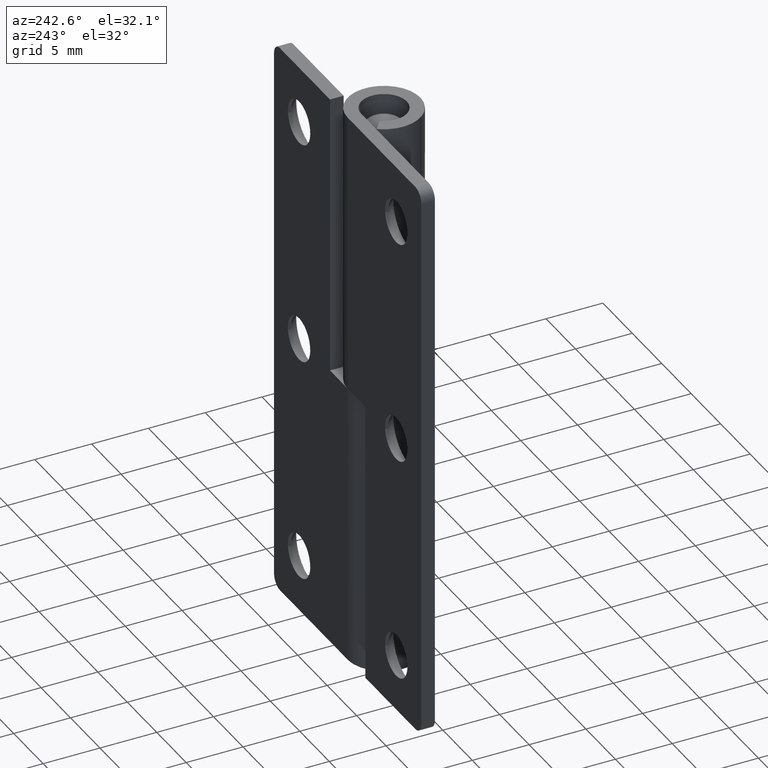
[diagram: clean part render]
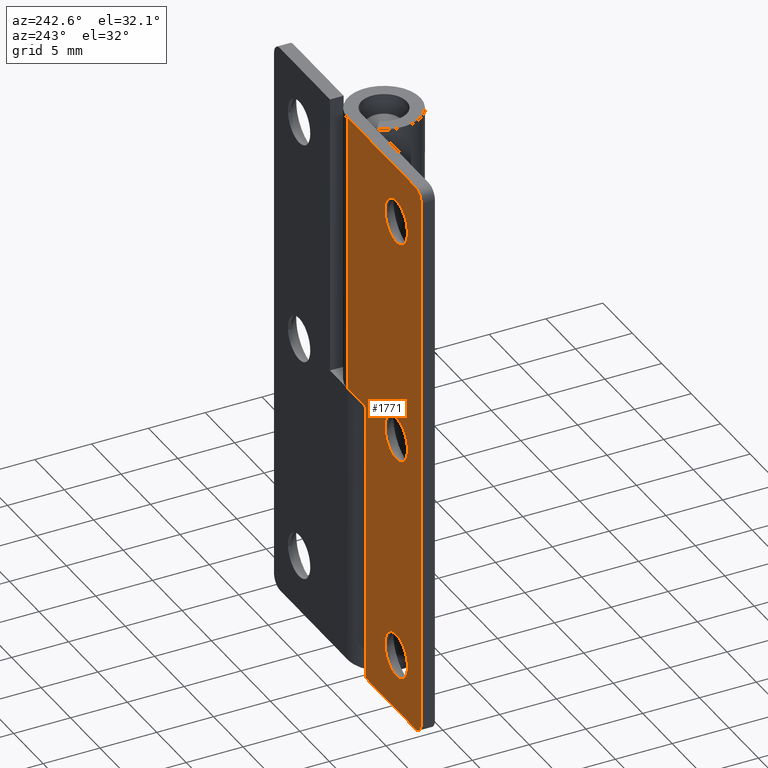
[diagram: same view with one face highlighted and labeled with its STEP entity id]
A machine part, auxiliary view. The second image highlights one B-rep face of the part: STEP entity #1771.
In plain terms, the highlighted face is a freeform B-spline surface patch.
Its self-contained STEP definition (entity closure, byte-faithful):
#368=CARTESIAN_POINT('',(-6.362408583839804,3.200001001358031,44.783208472573087));
#369=VERTEX_POINT('',#368);
#375=CARTESIAN_POINT('',(-8.250000000000000,3.200001001358030,43.100000000000001));
#376=VERTEX_POINT('',#375);
#377=CARTESIAN_POINT('',(-6.362408583839804,3.200001001358031,44.783208472573087));
#378=CARTESIAN_POINT('',(-6.555726771234848,3.200001001358031,43.100000000000001));
#379=CARTESIAN_POINT('',(-8.250000000000000,3.200001001358030,43.100000000000001));
#387=(BOUNDED_CURVE()B_SPLINE_CURVE(2,(#377,#378,#379),.UNSPECIFIED.,.F.,.U.)B_SPLINE_CURVE_WITH_KNOTS((3,3),(0.269767803717760,0.500000000000000),.UNSPECIFIED.)CURVE()GEOMETRIC_REPRESENTATION_ITEM()RATIONAL_B_SPLINE_CURVE((0.957343642089429,0.730266203825616,1.0))REPRESENTATION_ITEM(''));
#388=EDGE_CURVE('',#369,#376,#387,.T.);
#390=CARTESIAN_POINT('',(-10.146456096158129,3.200001001358031,44.884007775818901));
#391=VERTEX_POINT('',#390);
#392=CARTESIAN_POINT('',(-8.250000000000000,3.200001001358030,43.100000000000001));
#393=CARTESIAN_POINT('',(-10.037341526481669,3.200001001358030,43.100000000000001));
#394=CARTESIAN_POINT('',(-10.146456096158133,3.200001001358031,44.884007775818901));
#402=(BOUNDED_CURVE()B_SPLINE_CURVE(2,(#392,#393,#394),.UNSPECIFIED.,.F.,.U.)B_SPLINE_CURVE_WITH_KNOTS((3,3),(0.500000000000000,0.739332962180381),.UNSPECIFIED.)CURVE()GEOMETRIC_REPRESENTATION_ITEM()RATIONAL_B_SPLINE_CURVE((1.0,0.719603993355320,0.976072041541208))REPRESENTATION_ITEM(''));
#403=EDGE_CURVE('',#376,#391,#402,.T.);
#498=CARTESIAN_POINT('',(-8.250000000000000,3.200001001358030,46.899999999999999));
#499=VERTEX_POINT('',#498);
#500=CARTESIAN_POINT('',(-10.146456096158133,3.200001001358031,44.884007775818901));
#501=CARTESIAN_POINT('',(-10.150000000000000,3.200001001358030,44.941949749393274));
#502=CARTESIAN_POINT('',(-10.150000000000000,3.200001001358030,45.0));
#503=CARTESIAN_POINT('',(-10.150000000000000,3.200001001358031,46.899999999999984));
#504=CARTESIAN_POINT('',(-8.250000000000000,3.200001001358030,46.899999999999999));
#512=(BOUNDED_CURVE()B_SPLINE_CURVE(2,(#500,#501,#502,#503,#504),.UNSPECIFIED.,.F.,.U.)B_SPLINE_CURVE_WITH_KNOTS((3,2,3),(0.739332962180382,0.750000000000000,1.0),.UNSPECIFIED.)CURVE()GEOMETRIC_REPRESENTATION_ITEM()RATIONAL_B_SPLINE_CURVE((0.976072041541210,0.987502787831229,1.0,0.707106781186547,1.0))REPRESENTATION_ITEM(''));
#513=EDGE_CURVE('',#391,#499,#512,.T.);
#515=CARTESIAN_POINT('',(-8.250000000000000,3.200001001358030,46.899999999999999));
#516=CARTESIAN_POINT('',(-6.350000000000001,3.200001001358031,46.899999999999984));
#517=CARTESIAN_POINT('',(-6.350000000000001,3.200001001358030,45.0));
#518=CARTESIAN_POINT('',(-6.350000000000001,3.200001001358031,44.891248984017686));
#519=CARTESIAN_POINT('',(-6.362408583839804,3.200001001358031,44.783208472573087));
#527=(BOUNDED_CURVE()B_SPLINE_CURVE(2,(#515,#516,#517,#518,#519),.UNSPECIFIED.,.F.,.U.)B_SPLINE_CURVE_WITH_KNOTS((3,2,3),(0.0,0.250000000000000,0.269767803717760),.UNSPECIFIED.)CURVE()GEOMETRIC_REPRESENTATION_ITEM()RATIONAL_B_SPLINE_CURVE((1.0,0.707106781186547,1.0,0.976840577360931,0.957343642089429))REPRESENTATION_ITEM(''));
#528=EDGE_CURVE('',#499,#369,#527,.T.);
#696=CARTESIAN_POINT('',(-6.362408583839804,3.200001001358031,24.783208472573079));
#697=VERTEX_POINT('',#696);
#703=CARTESIAN_POINT('',(-8.250000000000000,3.200001001358030,23.100000000000001));
#704=VERTEX_POINT('',#703);
#705=CARTESIAN_POINT('',(-6.362408583839804,3.200001001358030,24.783208472573079));
#706=CARTESIAN_POINT('',(-6.555726771234851,3.200001001358030,23.099999999999994));
#707=CARTESIAN_POINT('',(-8.250000000000000,3.200001001358030,23.100000000000001));
#715=(BOUNDED_CURVE()B_SPLINE_CURVE(2,(#705,#706,#707),.UNSPECIFIED.,.F.,.U.)B_SPLINE_CURVE_WITH_KNOTS((3,3),(0.269767803717760,0.500000000000000),.UNSPECIFIED.)CURVE()GEOMETRIC_REPRESENTATION_ITEM()RATIONAL_B_SPLINE_CURVE((0.957343642089428,0.730266203825617,1.0))REPRESENTATION_ITEM(''));
#716=EDGE_CURVE('',#697,#704,#715,.T.);
#718=CARTESIAN_POINT('',(-10.146456096158129,3.200001001358030,24.884007775818890));
#719=VERTEX_POINT('',#718);
#720=CARTESIAN_POINT('',(-8.250000000000000,3.200001001358030,23.100000000000001));
#721=CARTESIAN_POINT('',(-10.037341526481669,3.200001001358030,23.100000000000001));
#722=CARTESIAN_POINT('',(-10.146456096158133,3.200001001358030,24.884007775818890));
#730=(BOUNDED_CURVE()B_SPLINE_CURVE(2,(#720,#721,#722),.UNSPECIFIED.,.F.,.U.)B_SPLINE_CURVE_WITH_KNOTS((3,3),(0.500000000000000,0.739332962180381),.UNSPECIFIED.)CURVE()GEOMETRIC_REPRESENTATION_ITEM()RATIONAL_B_SPLINE_CURVE((1.0,0.719603993355320,0.976072041541208))REPRESENTATION_ITEM(''));
#731=EDGE_CURVE('',#704,#719,#730,.T.);
#826=CARTESIAN_POINT('',(-8.250000000000000,3.200001001358030,26.899999999999999));
#827=VERTEX_POINT('',#826);
#828=CARTESIAN_POINT('',(-10.146456096158133,3.200001001358031,24.884007775818898));
#829=CARTESIAN_POINT('',(-10.150000000000002,3.200001001358030,24.941949749393288));
#830=CARTESIAN_POINT('',(-10.150000000000000,3.200001001358030,25.0));
#831=CARTESIAN_POINT('',(-10.150000000000000,3.200001001358031,26.900000000000006));
#832=CARTESIAN_POINT('',(-8.250000000000000,3.200001001358030,26.899999999999999));
#840=(BOUNDED_CURVE()B_SPLINE_CURVE(2,(#828,#829,#830,#831,#832),.UNSPECIFIED.,.F.,.U.)B_SPLINE_CURVE_WITH_KNOTS((3,2,3),(0.739332962180381,0.750000000000000,1.0),.UNSPECIFIED.)CURVE()GEOMETRIC_REPRESENTATION_ITEM()RATIONAL_B_SPLINE_CURVE((0.976072041541209,0.987502787831228,1.0,0.707106781186547,1.0))REPRESENTATION_ITEM(''));
#841=EDGE_CURVE('',#719,#827,#840,.T.);
#843=CARTESIAN_POINT('',(-8.250000000000000,3.200001001358030,26.899999999999999));
#844=CARTESIAN_POINT('',(-6.350000000000001,3.200001001358031,26.900000000000006));
#845=CARTESIAN_POINT('',(-6.350000000000001,3.200001001358030,25.0));
#846=CARTESIAN_POINT('',(-6.350000000000001,3.200001001358031,24.891248984017693));
#847=CARTESIAN_POINT('',(-6.362408583839804,3.200001001358031,24.783208472573087));
#855=(BOUNDED_CURVE()B_SPLINE_CURVE(2,(#843,#844,#845,#846,#847),.UNSPECIFIED.,.F.,.U.)B_SPLINE_CURVE_WITH_KNOTS((3,2,3),(0.0,0.250000000000000,0.269767803717760),.UNSPECIFIED.)CURVE()GEOMETRIC_REPRESENTATION_ITEM()RATIONAL_B_SPLINE_CURVE((1.0,0.707106781186547,1.0,0.976840577360931,0.957343642089428))REPRESENTATION_ITEM(''));
#856=EDGE_CURVE('',#827,#697,#855,.T.);
#1024=CARTESIAN_POINT('',(-6.362408583839804,3.200001001358031,4.783208472573086));
#1025=VERTEX_POINT('',#1024);
#1031=CARTESIAN_POINT('',(-8.250000000000000,3.200001001358030,3.100000000000001));
#1032=VERTEX_POINT('',#1031);
#1033=CARTESIAN_POINT('',(-6.362408583839804,3.200001001358031,4.783208472573086));
#1034=CARTESIAN_POINT('',(-6.555726771234849,3.200001001358030,3.100000000000001));
#1035=CARTESIAN_POINT('',(-8.250000000000000,3.200001001358030,3.100000000000001));
#1043=(BOUNDED_CURVE()B_SPLINE_CURVE(2,(#1033,#1034,#1035),.UNSPECIFIED.,.F.,.U.)B_SPLINE_CURVE_WITH_KNOTS((3,3),(0.269767803717760,0.500000000000000),.UNSPECIFIED.)CURVE()GEOMETRIC_REPRESENTATION_ITEM()RATIONAL_B_SPLINE_CURVE((0.957343642089429,0.730266203825616,1.0))REPRESENTATION_ITEM(''));
#1044=EDGE_CURVE('',#1025,#1032,#1043,.T.);
#1046=CARTESIAN_POINT('',(-10.146456096158129,3.200001001358031,4.884007775818896));
#1047=VERTEX_POINT('',#1046);
#1048=CARTESIAN_POINT('',(-8.250000000000000,3.200001001358030,3.100000000000001));
#1049=CARTESIAN_POINT('',(-10.037341526481669,3.200001001358030,3.100000000000001));
#1050=CARTESIAN_POINT('',(-10.146456096158133,3.200001001358031,4.884007775818896));
#1058=(BOUNDED_CURVE()B_SPLINE_CURVE(2,(#1048,#1049,#1050),.UNSPECIFIED.,.F.,.U.)B_SPLINE_CURVE_WITH_KNOTS((3,3),(0.500000000000000,0.739332962180381),.UNSPECIFIED.)CURVE()GEOMETRIC_REPRESENTATION_ITEM()RATIONAL_B_SPLINE_CURVE((1.0,0.719603993355320,0.976072041541208))REPRESENTATION_ITEM(''));
#1059=EDGE_CURVE('',#1032,#1047,#1058,.T.);
#1154=CARTESIAN_POINT('',(-8.250000000000000,3.200001001358030,6.900000000000000));
#1155=VERTEX_POINT('',#1154);
#1156=CARTESIAN_POINT('',(-10.146456096158133,3.200001001358031,4.884007775818896));
#1157=CARTESIAN_POINT('',(-10.150000000000000,3.200001001358030,4.941949749393284));
#1158=CARTESIAN_POINT('',(-10.150000000000000,3.200001001358030,5.0));
#1159=CARTESIAN_POINT('',(-10.150000000000000,3.200001001358031,6.900000000000000));
#1160=CARTESIAN_POINT('',(-8.250000000000000,3.200001001358030,6.900000000000000));
#1168=(BOUNDED_CURVE()B_SPLINE_CURVE(2,(#1156,#1157,#1158,#1159,#1160),.UNSPECIFIED.,.F.,.U.)B_SPLINE_CURVE_WITH_KNOTS((3,2,3),(0.739332962180382,0.750000000000000,1.0),.UNSPECIFIED.)CURVE()GEOMETRIC_REPRESENTATION_ITEM()RATIONAL_B_SPLINE_CURVE((0.976072041541210,0.987502787831229,1.0,0.707106781186547,1.0))REPRESENTATION_ITEM(''));
#1169=EDGE_CURVE('',#1047,#1155,#1168,.T.);
#1171=CARTESIAN_POINT('',(-8.250000000000000,3.200001001358030,6.900000000000000));
#1172=CARTESIAN_POINT('',(-6.350000000000001,3.200001001358031,6.900000000000000));
#1173=CARTESIAN_POINT('',(-6.350000000000001,3.200001001358030,5.0));
#1174=CARTESIAN_POINT('',(-6.350000000000000,3.200001001358031,4.891248984017694));
#1175=CARTESIAN_POINT('',(-6.362408583839804,3.200001001358031,4.783208472573086));
#1183=(BOUNDED_CURVE()B_SPLINE_CURVE(2,(#1171,#1172,#1173,#1174,#1175),.UNSPECIFIED.,.F.,.U.)B_SPLINE_CURVE_WITH_KNOTS((3,2,3),(0.0,0.250000000000000,0.269767803717760),.UNSPECIFIED.)CURVE()GEOMETRIC_REPRESENTATION_ITEM()RATIONAL_B_SPLINE_CURVE((1.0,0.707106781186547,1.0,0.976840577360931,0.957343642089429))REPRESENTATION_ITEM(''));
#1184=EDGE_CURVE('',#1155,#1025,#1183,.T.);
#1331=CARTESIAN_POINT('',(-3.0,3.200000999999955,0.0));
#1332=VERTEX_POINT('',#1331);
#1338=CARTESIAN_POINT('',(-3.0,3.200000999999955,25.0));
#1339=VERTEX_POINT('',#1338);
#1340=CARTESIAN_POINT('',(-3.0,3.200000999999955,0.0));
#1341=CARTESIAN_POINT('',(-3.0,3.200000999999955,25.0));
#1342=QUASI_UNIFORM_CURVE('',1,(#1340,#1341),.UNSPECIFIED.,.F.,.U.);
#1343=EDGE_CURVE('',#1332,#1339,#1342,.T.);
#1360=CARTESIAN_POINT('',(0.0,3.200000999999955,25.0));
#1361=VERTEX_POINT('',#1360);
#1415=CARTESIAN_POINT('',(-3.0,3.200000999999955,25.0));
#1416=CARTESIAN_POINT('',(0.0,3.200000999999955,25.0));
#1417=QUASI_UNIFORM_CURVE('',1,(#1415,#1416),.UNSPECIFIED.,.F.,.U.);
#1418=EDGE_CURVE('',#1339,#1361,#1417,.T.);
#1456=CARTESIAN_POINT('',(-11.500000000000000,3.200000999999955,50.0));
#1457=VERTEX_POINT('',#1456);
#1463=CARTESIAN_POINT('',(-12.500000000000000,3.200000999999955,48.999999912733500));
#1464=VERTEX_POINT('',#1463);
#1465=CARTESIAN_POINT('',(-11.500000000000000,3.200000999999955,50.0));
#1466=CARTESIAN_POINT('',(-11.914213587932865,3.200000999999955,50.0));
#1467=CARTESIAN_POINT('',(-12.207106812039910,3.200000999999955,49.707106750333182));
#1468=CARTESIAN_POINT('',(-12.500000036146966,3.200000999999955,49.414213500666364));
#1469=CARTESIAN_POINT('',(-12.500000000000000,3.200000999999955,48.999999912733500));
#1477=(BOUNDED_CURVE()B_SPLINE_CURVE(2,(#1465,#1466,#1467,#1468,#1469),.UNSPECIFIED.,.F.,.U.)B_SPLINE_CURVE_WITH_KNOTS((3,2,3),(0.0,0.500000000000000,1.0),.UNSPECIFIED.)CURVE()GEOMETRIC_REPRESENTATION_ITEM()RATIONAL_B_SPLINE_CURVE((1.0,0.923879524162425,1.0,0.923879524162425,1.0))REPRESENTATION_ITEM(''));
#1478=EDGE_CURVE('',#1457,#1464,#1477,.T.);
#1519=CARTESIAN_POINT('',(-12.500000000000000,3.200000999999955,1.0));
#1520=VERTEX_POINT('',#1519);
#1526=CARTESIAN_POINT('',(-11.500000000000000,3.200001000000000,0.0));
#1527=VERTEX_POINT('',#1526);
#1528=CARTESIAN_POINT('',(-12.500000000000000,3.200000999999955,1.0));
#1529=CARTESIAN_POINT('',(-12.500000000000000,3.200000999999956,0.0));
#1530=CARTESIAN_POINT('',(-11.500000000000000,3.200001000000000,0.0));
#1538=(BOUNDED_CURVE()B_SPLINE_CURVE(2,(#1528,#1529,#1530),.UNSPECIFIED.,.F.,.U.)CURVE()GEOMETRIC_REPRESENTATION_ITEM()QUASI_UNIFORM_CURVE()RATIONAL_B_SPLINE_CURVE((1.0,0.707106781186548,1.0))REPRESENTATION_ITEM(''));
#1539=EDGE_CURVE('',#1520,#1527,#1538,.T.);
#1643=CARTESIAN_POINT('',(0.0,3.200001000000000,50.0));
#1644=VERTEX_POINT('',#1643);
#1664=CARTESIAN_POINT('',(-11.500000000000000,3.200000999999955,50.0));
#1665=CARTESIAN_POINT('',(0.0,3.200001000000000,50.0));
#1666=QUASI_UNIFORM_CURVE('',1,(#1664,#1665),.UNSPECIFIED.,.F.,.U.);
#1667=EDGE_CURVE('',#1457,#1644,#1666,.T.);
#1678=CARTESIAN_POINT('',(-12.500000000000000,3.200000999999955,1.0));
#1679=CARTESIAN_POINT('',(-12.500000000000000,3.200000999999955,48.999999912733500));
#1680=QUASI_UNIFORM_CURVE('',1,(#1678,#1679),.UNSPECIFIED.,.F.,.U.);
#1681=EDGE_CURVE('',#1520,#1464,#1680,.T.);
#1730=CARTESIAN_POINT('',(-13.124374975772570,3.200001000000000,52.497499903090286));
#1731=CARTESIAN_POINT('',(-13.124374975772570,3.200001000000000,-2.497501244194806));
#1732=CARTESIAN_POINT('',(0.624375311048700,3.200001000000000,52.497499903090301));
#1733=CARTESIAN_POINT('',(0.624375311048700,3.200001000000000,-2.497501244194806));
#1734=B_SPLINE_SURFACE_WITH_KNOTS('',1,1,((#1730,#1732),(#1731,#1733)),.UNSPECIFIED.,.F.,.F.,.U.,(2,2),(2,2),(0.0,54.995001147285109),(0.0,13.748750286821270),.UNSPECIFIED.);
#1735=ORIENTED_EDGE('',*,*,#1418,.F.);
#1736=ORIENTED_EDGE('',*,*,#1343,.F.);
#1737=CARTESIAN_POINT('',(-11.500000000000000,3.200001000000000,0.0));
#1738=CARTESIAN_POINT('',(-3.0,3.200000999999955,0.0));
#1739=QUASI_UNIFORM_CURVE('',1,(#1737,#1738),.UNSPECIFIED.,.F.,.U.);
#1740=EDGE_CURVE('',#1527,#1332,#1739,.T.);
#1741=ORIENTED_EDGE('',*,*,#1740,.F.);
#1742=ORIENTED_EDGE('',*,*,#1539,.F.);
#1743=ORIENTED_EDGE('',*,*,#1681,.T.);
#1744=ORIENTED_EDGE('',*,*,#1478,.F.);
#1745=ORIENTED_EDGE('',*,*,#1667,.T.);
#1746=CARTESIAN_POINT('',(0.0,3.200000999999955,25.0));
#1747=CARTESIAN_POINT('',(0.0,3.200001000000000,50.0));
#1748=QUASI_UNIFORM_CURVE('',1,(#1746,#1747),.UNSPECIFIED.,.F.,.U.);
#1749=EDGE_CURVE('',#1361,#1644,#1748,.T.);
#1750=ORIENTED_EDGE('',*,*,#1749,.F.);
#1751=EDGE_LOOP('',(#1735,#1736,#1741,#1742,#1743,#1744,#1745,#1750));
#1752=FACE_OUTER_BOUND('',#1751,.T.);
#1753=ORIENTED_EDGE('',*,*,#1059,.F.);
#1754=ORIENTED_EDGE('',*,*,#1044,.F.);
#1755=ORIENTED_EDGE('',*,*,#1184,.F.);
#1756=ORIENTED_EDGE('',*,*,#1169,.F.);
#1757=EDGE_LOOP('',(#1753,#1754,#1755,#1756));
#1758=FACE_BOUND('',#1757,.T.);
#1759=ORIENTED_EDGE('',*,*,#731,.F.);
#1760=ORIENTED_EDGE('',*,*,#716,.F.);
#1761=ORIENTED_EDGE('',*,*,#856,.F.);
#1762=ORIENTED_EDGE('',*,*,#841,.F.);
#1763=EDGE_LOOP('',(#1759,#1760,#1761,#1762));
#1764=FACE_BOUND('',#1763,.T.);
#1765=ORIENTED_EDGE('',*,*,#403,.F.);
#1766=ORIENTED_EDGE('',*,*,#388,.F.);
#1767=ORIENTED_EDGE('',*,*,#528,.F.);
#1768=ORIENTED_EDGE('',*,*,#513,.F.);
#1769=EDGE_LOOP('',(#1765,#1766,#1767,#1768));
#1770=FACE_BOUND('',#1769,.T.);
#1771=ADVANCED_FACE('',(#1752,#1758,#1764,#1770),#1734,.F.);